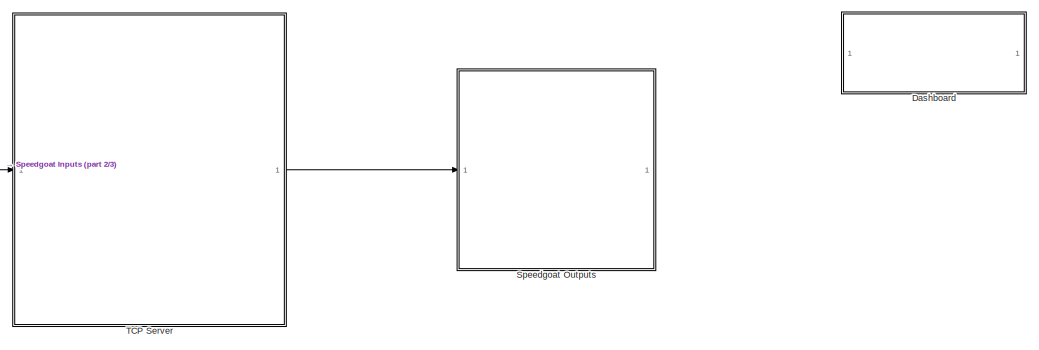
[diagram: root canvas - part 1/3, top right region]
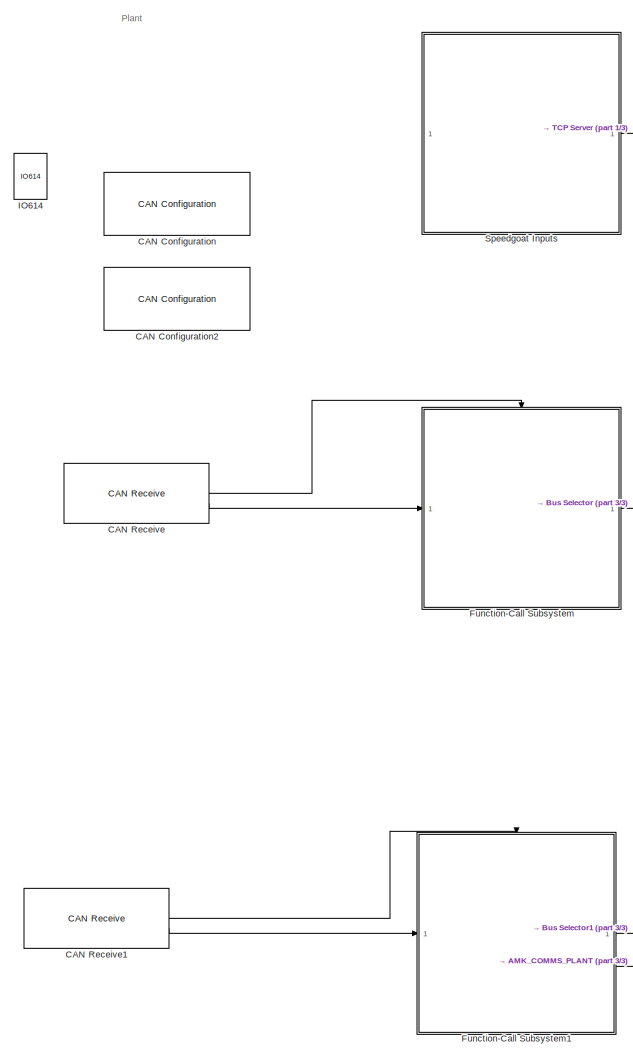
[diagram: root canvas - part 2/3, left side, full height]
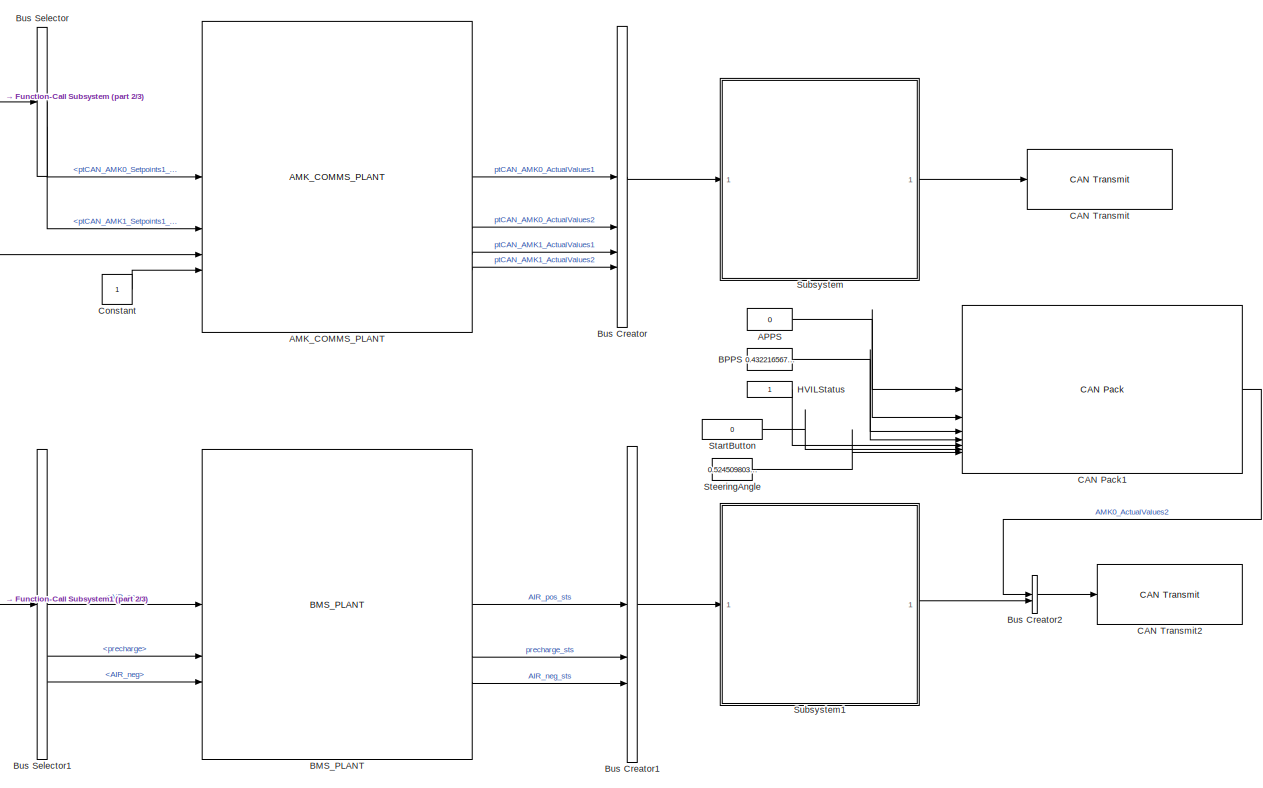
[diagram: root canvas - part 3/3, middle right region]
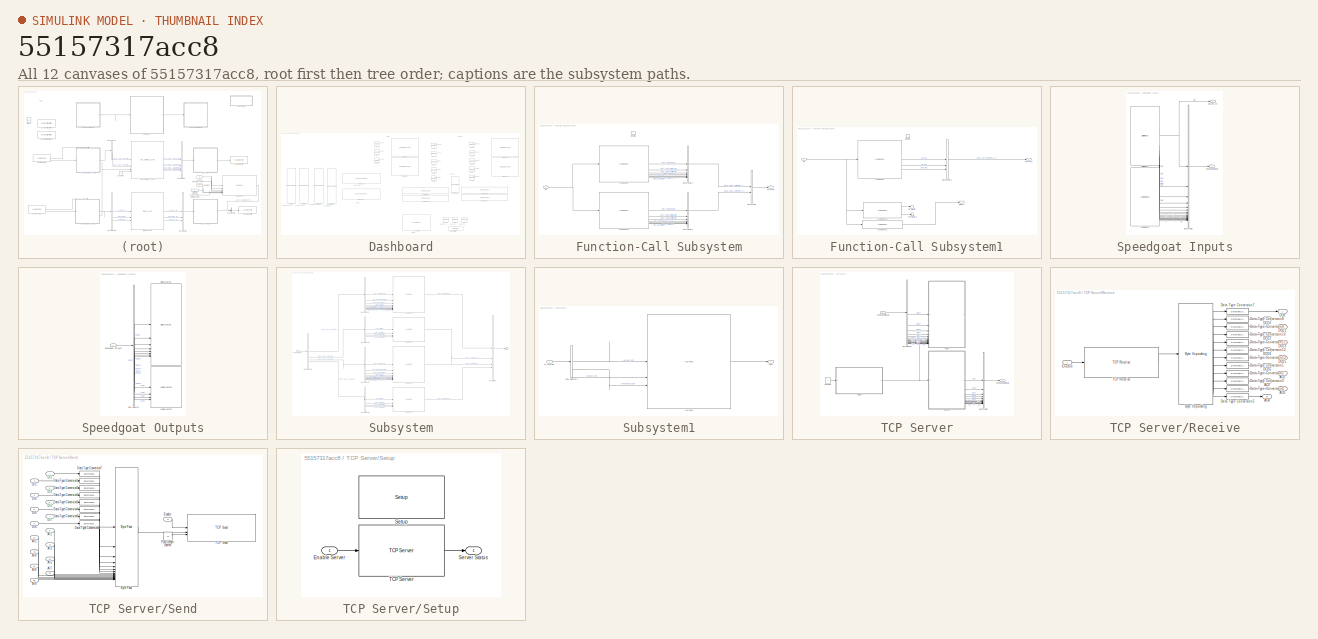
[diagram: thumbnail index - all 12 canvases of the model, root first then tree order]
MODEL slx_55157317acc8
KIND model
CONFIG AbsTol = auto
CONFIG EnableMultiTasking = off
CONFIG FixedStep = 0.001
CONFIG MaxStep = auto
CONFIG MinStep = auto
CONFIG RelTol = 1e-3
CONFIG SampleTimeConstraint = Unconstrained
CONFIG SolverName = FixedStepAuto
CONFIG StartTime = 0.0
CONFIG StopTime = inf
BLOCK [Reference] AMK_COMMS_PLANT  REF=AMK_comms_plant_lib/AMK_COMMS_PLANT
  SourceBlock = AMK_comms_plant_lib/AMK_COMMS_PLANT
  SourceType = SubSystem
BLOCK [Constant] APPS
  Value = 0
BLOCK [Reference] BMS_PLANT  REF=BMS_plant_lib/BMS_PLANT
  SourceBlock = BMS_plant_lib/BMS_PLANT
  SourceType = SubSystem
BLOCK [Constant] BPPS
  Value = 0.4322165677127509
BLOCK [BusCreator] Bus Creator
  DisplayOption = bar
  InheritFromInputs = on
  Inputs = 4
BLOCK [BusCreator] Bus Creator1
  DisplayOption = bar
  InheritFromInputs = on
  Inputs = 3
BLOCK [BusCreator] Bus Creator2
  DisplayOption = bar
  InheritFromInputs = on
  Inputs = 2
BLOCK [BusSelector] Bus Selector
  OutputSignals = ptCAN_AMK0_Setpoints1_Left,ptCAN_AMK1_Setpoints1_Right
BLOCK [BusSelector] Bus Selector1
  OutputSignals = AIR_pos,precharge,AIR_neg
BLOCK [Reference] CAN Configuration  REF=canlib/CAN Configuration
  SourceBlock = canlib/CAN Configuration
  SourceType = CAN Configuration
BLOCK [Reference] CAN Configuration2  REF=canlib/CAN Configuration
  SourceBlock = canlib/CAN Configuration
  SourceType = CAN Configuration
BLOCK [Reference] CAN Pack1  REF=canmsglib/CAN Pack
  LibrarySourceBlock = canlib/CAN Pack
  SourceBlock = canmsglib/CAN Pack
  SourceType = CAN Pack
BLOCK [Reference] CAN Receive  REF=canlib/CAN Receive
  SourceBlock = canlib/CAN Receive
  SourceType = CAN Receive
BLOCK [Reference] CAN Receive1  REF=canlib/CAN Receive
  SourceBlock = canlib/CAN Receive
  SourceType = CAN Receive
BLOCK [Reference] CAN Transmit  REF=canlib/CAN Transmit
  SourceBlock = canlib/CAN Transmit
  SourceType = CAN Transmit
BLOCK [Reference] CAN Transmit2  REF=canlib/CAN Transmit
  SourceBlock = canlib/CAN Transmit
  SourceType = CAN Transmit
BLOCK [Constant] Constant
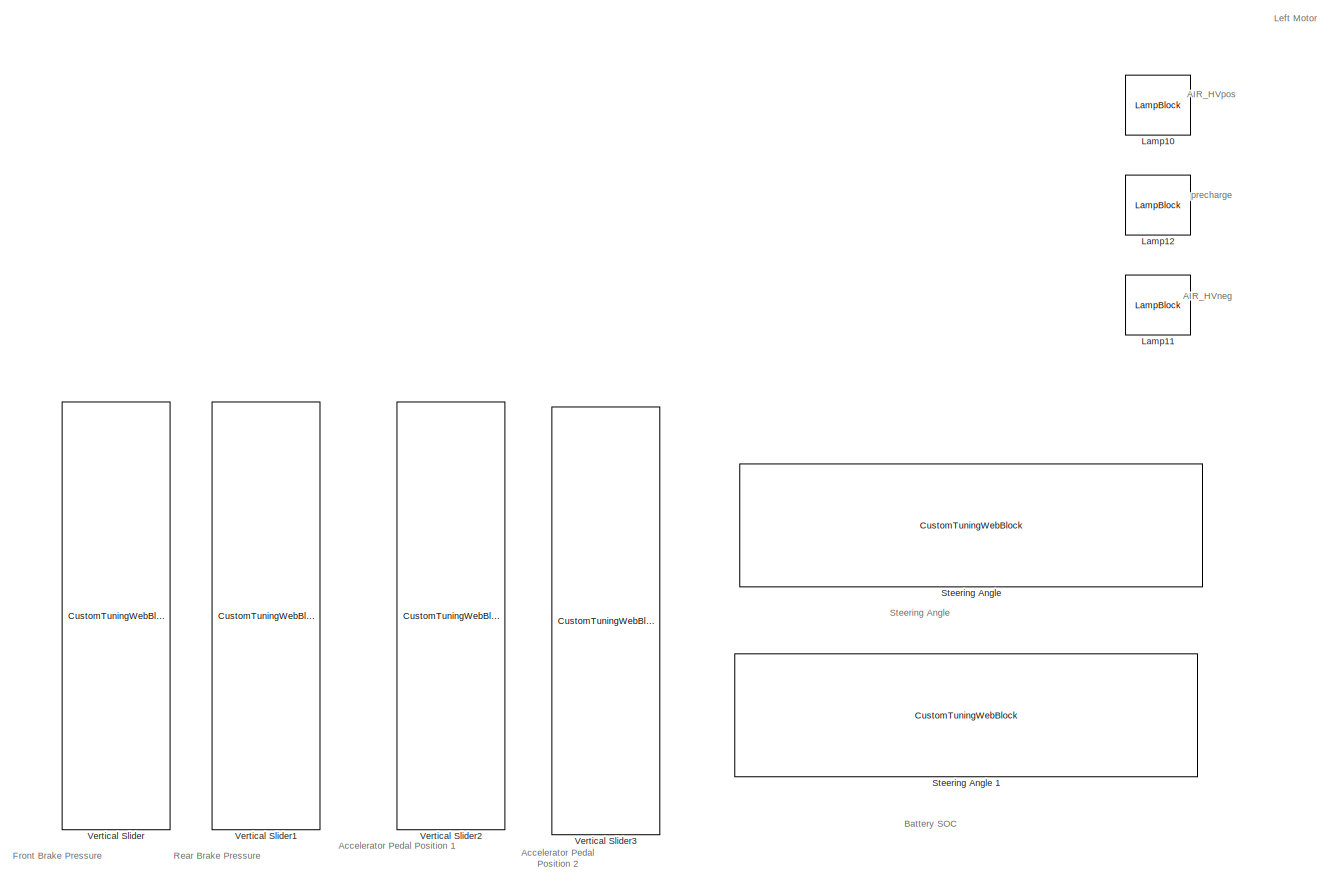
[diagram: Dashboard - part 1/3, middle left region]
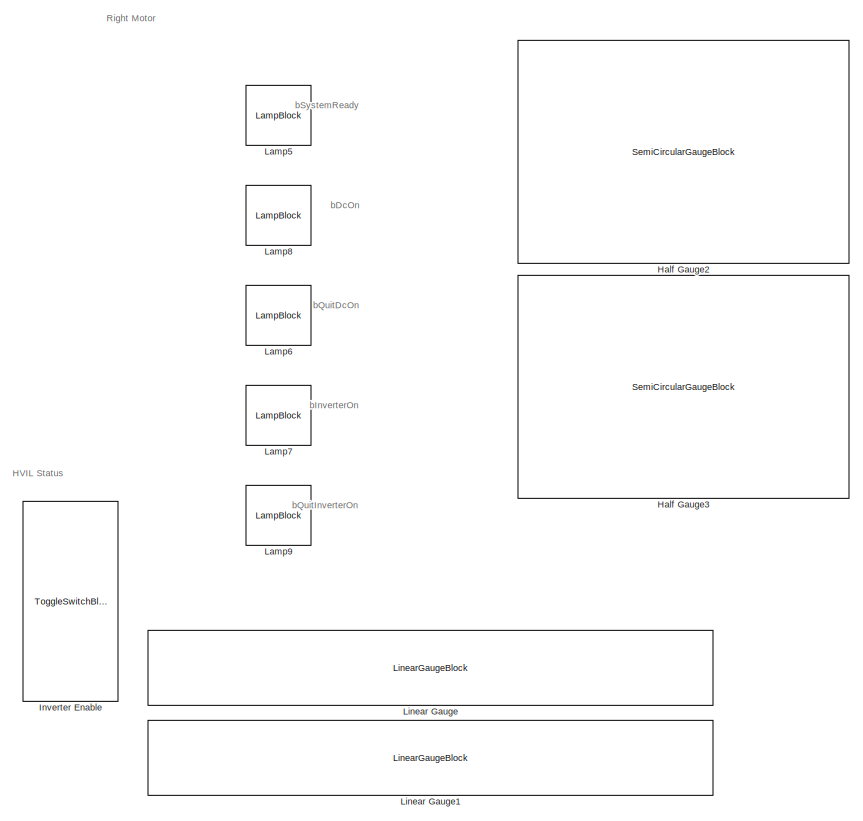
[diagram: Dashboard - part 2/3, middle right region]
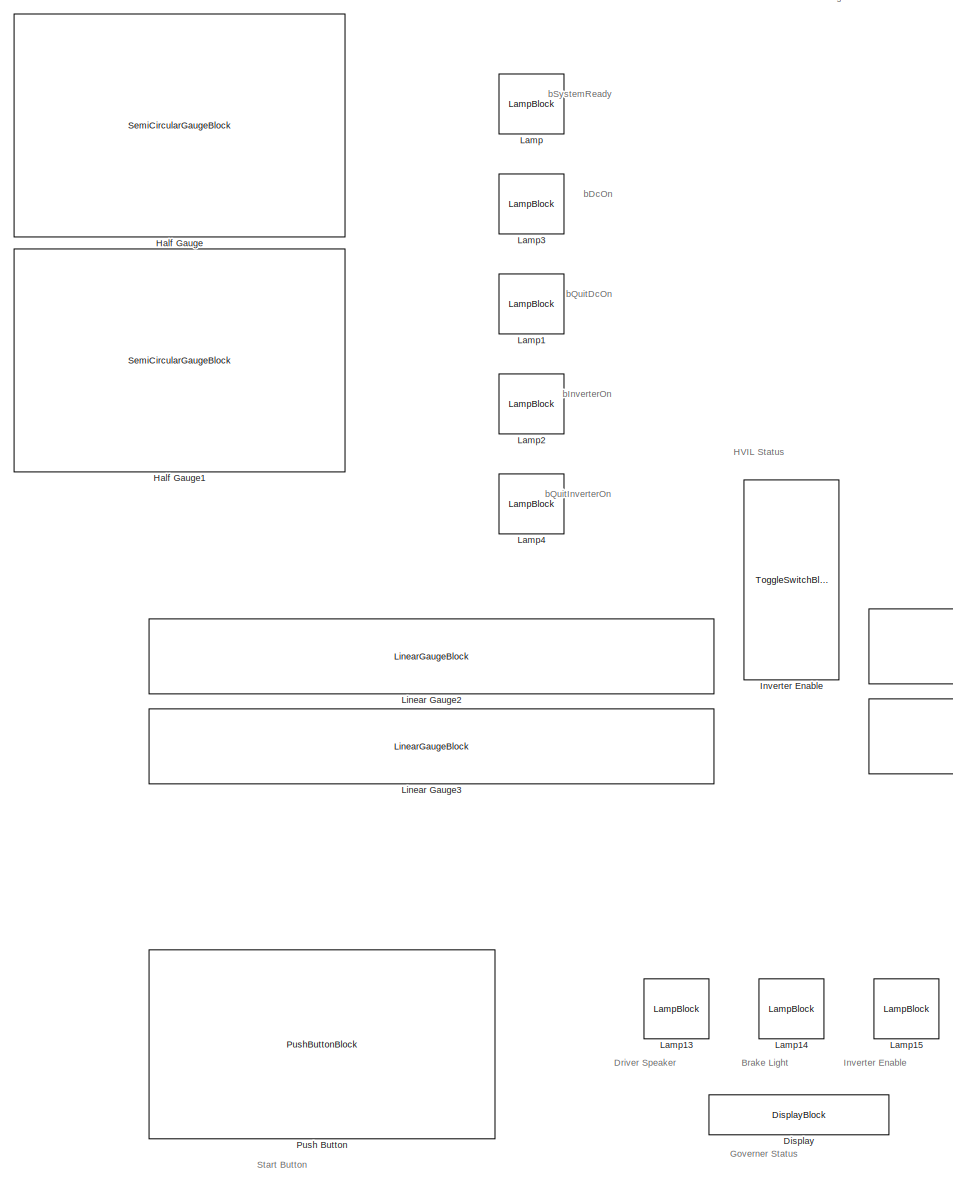
[diagram: Dashboard - part 3/3, center side, full height]
BLOCK [SubSystem] Dashboard
BLOCK [DisplayBlock] Dashboard/Display
  LabelPosition = Hide
  Transparency = 1
BLOCK [SemiCircularGaugeBlock] Dashboard/Half Gauge
  LabelPosition = Bottom
  ScaleMax = 20000
  TickInterval = 2000
BLOCK [SemiCircularGaugeBlock] Dashboard/Half Gauge1
  LabelPosition = Bottom
  ScaleMax = 1000
  TickInterval = 100
BLOCK [SemiCircularGaugeBlock] Dashboard/Half Gauge2
  LabelPosition = Bottom
  ScaleMax = 20000
  TickInterval = 2000
BLOCK [SemiCircularGaugeBlock] Dashboard/Half Gauge3
  LabelPosition = Bottom
  ScaleMax = 1000
  TickInterval = 100
BLOCK [ToggleSwitchBlock] Dashboard/Inverter Enable
  LabelPosition = Bottom
BLOCK [LampBlock] Dashboard/Lamp
  LabelPosition = Hide
BLOCK [LampBlock] Dashboard/Lamp1
  LabelPosition = Hide
BLOCK [LampBlock] Dashboard/Lamp10
  LabelPosition = Hide
BLOCK [LampBlock] Dashboard/Lamp11
  LabelPosition = Hide
BLOCK [LampBlock] Dashboard/Lamp12
  LabelPosition = Hide
BLOCK [LampBlock] Dashboard/Lamp13
  LabelPosition = Hide
BLOCK [LampBlock] Dashboard/Lamp14
  LabelPosition = Hide
BLOCK [LampBlock] Dashboard/Lamp15
  LabelPosition = Hide
BLOCK [LampBlock] Dashboard/Lamp2
  LabelPosition = Hide
BLOCK [LampBlock] Dashboard/Lamp3
  LabelPosition = Hide
BLOCK [LampBlock] Dashboard/Lamp4
  LabelPosition = Hide
BLOCK [LampBlock] Dashboard/Lamp5
  LabelPosition = Hide
BLOCK [LampBlock] Dashboard/Lamp6
  LabelPosition = Hide
BLOCK [LampBlock] Dashboard/Lamp7
  LabelPosition = Hide
BLOCK [LampBlock] Dashboard/Lamp8
  LabelPosition = Hide
BLOCK [LampBlock] Dashboard/Lamp9
  LabelPosition = Hide
BLOCK [LinearGaugeBlock] Dashboard/Linear Gauge
  ScaleMax = 20000
  TickInterval = 2000
BLOCK [LinearGaugeBlock] Dashboard/Linear Gauge1
  ScaleMax = 1000
  TickInterval = 100
BLOCK [LinearGaugeBlock] Dashboard/Linear Gauge2
  ScaleMax = 20000
  TickInterval = 2000
BLOCK [LinearGaugeBlock] Dashboard/Linear Gauge3
  ScaleMax = 1000
  TickInterval = 100
BLOCK [PushButtonBlock] Dashboard/Push Button
  OffValue = 0.000000
BLOCK [CustomTuningWebBlock] Dashboard/Steering Angle 
  Configuration = {"components":[{"name":"LinearScaleComponent","settings":{"bounds":{"max":1,"min":0,"tickInterval":"auto"},"internalTickHeightScaleFactor":0.5,"labelColor":[255,255,200],"labelFont":{"font":"Arial","fontSize":12},"labelOffset":0.05,"labelTransparency":1,"needleImage":{"size":[596,842],"src":"data:image\/svg+xml;base64,PD94bWwgdmVyc2lvbj0iMS4wIiBlbmNvZGluZz0idXRmLTgiPz4NCjwhLS0gR2VuZXJhdG9yOiBBZG9i...<+5488ch>
  LabelPosition = Hide
  ShowInitialText = on
BLOCK [CustomTuningWebBlock] Dashboard/Steering Angle 1
  Configuration = {"components":[{"name":"LinearScaleComponent","settings":{"bounds":{"max":100,"min":0,"tickInterval":"auto"},"internalTickHeightScaleFactor":0.5,"labelColor":[255,255,200],"labelFont":{"font":"Arial","fontSize":12},"labelOffset":0.05,"labelTransparency":1,"needleImage":{"size":[596,842],"src":"data:image\/svg+xml;base64,PD94bWwgdmVyc2lvbj0iMS4wIiBlbmNvZGluZz0idXRmLTgiPz4NCjwhLS0gR2VuZXJhdG9yOiBBZG...<+5490ch>
  LabelPosition = Hide
  ShowInitialText = on
BLOCK [CustomTuningWebBlock] Dashboard/Vertical Slider
  Configuration = {"components":[{"name":"LinearScaleComponent","settings":{"bounds":{"max":1,"min":0,"tickInterval":"auto"},"internalTickHeightScaleFactor":0.5,"labelColor":[255,255,200],"labelFont":{"font":"Arial","fontSize":12},"labelOffset":0.05,"labelTransparency":1,"needleImage":{"size":[596,842],"src":"data:image\/svg+xml;base64,PD94bWwgdmVyc2lvbj0iMS4wIiBlbmNvZGluZz0idXRmLTgiPz4NCjwhLS0gR2VuZXJhdG9yOiBBZG9i...<+5490ch>  <repeated x4 — deduplicated; at blocks: Vertical Slider, Vertical Slider1, Vertical Slider2, Vertical Slider3>
  LabelPosition = Hide
  ShowInitialText = on
BLOCK [CustomTuningWebBlock] Dashboard/Vertical Slider1
  LabelPosition = Hide
  ShowInitialText = on
BLOCK [CustomTuningWebBlock] Dashboard/Vertical Slider2
  LabelPosition = Hide
  ShowInitialText = on
BLOCK [CustomTuningWebBlock] Dashboard/Vertical Slider3
  LabelPosition = Hide
  ShowInitialText = on
BLOCK [SubSystem] Function-Call Subsystem
  TreatAsAtomicUnit = on
BLOCK [BusCreator] Function-Call Subsystem/Bus Creator
  DisplayOption = bar
  InheritFromInputs = on
  Inputs = 2
BLOCK [BusCreator] Function-Call Subsystem/Bus Creator1
  DisplayOption = bar
  InheritFromInputs = on
  Inputs = 7
BLOCK [BusCreator] Function-Call Subsystem/Bus Creator2
  DisplayOption = bar
  InheritFromInputs = on
  Inputs = 7
BLOCK [Reference] Function-Call Subsystem/CAN Unpack  REF=canmsglib/CAN Unpack
  LibrarySourceBlock = canlib/CAN Unpack
  SourceBlock = canmsglib/CAN Unpack
  SourceType = CAN Unpack
BLOCK [Reference] Function-Call Subsystem/CAN Unpack1  REF=canmsglib/CAN Unpack
  LibrarySourceBlock = canlib/CAN Unpack
  SourceBlock = canmsglib/CAN Unpack
  SourceType = CAN Unpack
BLOCK [Inport] Function-Call Subsystem/In1
BLOCK [TriggerPort] Function-Call Subsystem/function
  StatesWhenEnabling = held
  TriggerType = function-call
  VariantControl = (inherit)
BLOCK [Outport] Function-Call Subsystem/pt_CAN_IN
BLOCK [SubSystem] Function-Call Subsystem1
  TreatAsAtomicUnit = on
BLOCK [BusCreator] Function-Call Subsystem1/Bus Creator1
  DisplayOption = bar
  InheritFromInputs = on
  Inputs = 3
BLOCK [Reference] Function-Call Subsystem1/CAN Unpack  REF=canmsglib/CAN Unpack
  LibrarySourceBlock = canlib/CAN Unpack
  SourceBlock = canmsglib/CAN Unpack
  SourceType = CAN Unpack
BLOCK [Reference] Function-Call Subsystem1/CAN Unpack1  REF=canmsglib/CAN Unpack
  LibrarySourceBlock = canlib/CAN Unpack
  SourceBlock = canmsglib/CAN Unpack
  SourceType = CAN Unpack
BLOCK [Reference] Function-Call Subsystem1/CAN Unpack2  REF=canmsglib/CAN Unpack
  LibrarySourceBlock = canlib/CAN Unpack
  SourceBlock = canmsglib/CAN Unpack
  SourceType = CAN Unpack
BLOCK [Inport] Function-Call Subsystem1/In1
BLOCK [Outport] Function-Call Subsystem1/Outport
  Port = 2
BLOCK [Terminator] Function-Call Subsystem1/Terminator
BLOCK [Terminator] Function-Call Subsystem1/Terminator1
BLOCK [TriggerPort] Function-Call Subsystem1/function
  StatesWhenEnabling = held
  TriggerType = function-call
  VariantControl = (inherit)
BLOCK [Outport] Function-Call Subsystem1/pt_CAN_IN
BLOCK [Constant] HVILStatus
BLOCK [Reference] IO614  REF=speedgoatlib_CAN/IO614
  SourceBlock = speedgoatlib_CAN/IO614
  SourceProductName = Simulink Real-Time: Speedgoat I/O Blockset
BLOCK [SubSystem] Speedgoat Inputs
  Commented = on
BLOCK [Reference] Speedgoat Inputs/Analog input   REF=speedgoatlib_IO191/Analog input 
  SourceBlock = speedgoatlib_IO191/Analog input
  SourceProductName = Simulink Real-Time: Speedgoat I/O Blockset
  SourceType = ad_IO191
BLOCK [BusCreator] Speedgoat Inputs/Bus Creator
  DisplayOption = bar
  InheritFromInputs = on
  Inputs = 16
BLOCK [Reference] Speedgoat Inputs/Digital input   REF=speedgoatlib_IO191/Digital input 
  SourceBlock = speedgoatlib_IO191/Digital input
  SourceProductName = Simulink Real-Time: Speedgoat I/O Blockset
  SourceType = di_IO191
BLOCK [Outport] Speedgoat Inputs/Speedgoat Inputs
BLOCK [Outport] Speedgoat Inputs/inverter_en
  Port = 2
BLOCK [SubSystem] Speedgoat Outputs
  Commented = on
BLOCK [Reference] Speedgoat Outputs/Analog output   REF=speedgoatlib_IO191/Analog output 
  SourceBlock = speedgoatlib_IO191/Analog output
  SourceProductName = Simulink Real-Time: Speedgoat I/O Blockset
  SourceType = da_IO191
BLOCK [BusSelector] Speedgoat Outputs/Bus Selector
  OutputSignals = DO9,DO10,DO11,DO12,DO13,DO14,DO15,DO16,AO1,AO2,AO3,AO4
BLOCK [Reference] Speedgoat Outputs/Digital output   REF=speedgoatlib_IO191/Digital output 
  SourceBlock = speedgoatlib_IO191/Digital output
  SourceProductName = Simulink Real-Time: Speedgoat I/O Blockset
  SourceType = do_IO191
BLOCK [Inport] Speedgoat Outputs/Speedgoat Outputs
BLOCK [Constant] StartButton
  Value = 0
BLOCK [Constant] SteeringAngle
  Value = 0.5245098039215687
  VectorParams1D = off
BLOCK [SubSystem] Subsystem
BLOCK [BusCreator] Subsystem/Bus Creator
  DisplayOption = bar
  InheritFromInputs = on
  Inputs = 4
BLOCK [BusSelector] Subsystem/Bus Selector
  OutputSignals = AMK_ActualVelocity,AMK_MagnetizingCurrent,AMK_TorqueCurrent_L,AMK_bDcOn,AMK_bDerating,AMK_bError,AMK_bInverterOn,AMK_bQuitDcOn,AMK_bQuitInverterOn,AMK_bSystemReady,AMK_bWarn
BLOCK [BusSelector] Subsystem/Bus Selector1
  OutputSignals = AMK_ErrorInfo,AMK_TempIGBT,AMK_TempInverter,AMK_TempMotor
BLOCK [BusSelector] Subsystem/Bus Selector2
  OutputSignals = AMK_ActualVelocity,AMK_MagnetizingCurrent,AMK_TorqueCurrent,AMK_bDcOn,AMK_bDerating,AMK_bError,AMK_bInverterOn,AMK_bQuitDcOn,AMK_bQuitInverterOn,AMK_bSystemReady,AMK_bWarn
BLOCK [BusSelector] Subsystem/Bus Selector3
  OutputSignals = AMK_ErrorInfo,AMK_TempIGBT,AMK_TempInverter,AMK_TempMotor
BLOCK [BusSelector] Subsystem/Bus Selector4
  OutputSignals = ptCAN_AMK0_ActualValues1,ptCAN_AMK0_ActualValues2,ptCAN_AMK1_ActualValues1,ptCAN_AMK1_ActualValues2
BLOCK [Reference] Subsystem/CAN Pack  REF=canmsglib/CAN Pack
  LibrarySourceBlock = canlib/CAN Pack
  SourceBlock = canmsglib/CAN Pack
  SourceType = CAN Pack
BLOCK [Reference] Subsystem/CAN Pack1  REF=canmsglib/CAN Pack
  LibrarySourceBlock = canlib/CAN Pack
  SourceBlock = canmsglib/CAN Pack
  SourceType = CAN Pack
BLOCK [Reference] Subsystem/CAN Pack2  REF=canmsglib/CAN Pack
  LibrarySourceBlock = canlib/CAN Pack
  SourceBlock = canmsglib/CAN Pack
  SourceType = CAN Pack
BLOCK [Reference] Subsystem/CAN Pack3  REF=canmsglib/CAN Pack
  LibrarySourceBlock = canlib/CAN Pack
  SourceBlock = canmsglib/CAN Pack
  SourceType = CAN Pack
BLOCK [Outport] Subsystem/Out1
BLOCK [Inport] Subsystem/pt_CAN_OUT
BLOCK [SubSystem] Subsystem1
BLOCK [BusSelector] Subsystem1/Bus Selector4
  OutputSignals = AIR_neg_sts,AIR_pos_sts,precharge_sts
BLOCK [Reference] Subsystem1/CAN Pack  REF=canmsglib/CAN Pack
  LibrarySourceBlock = canlib/CAN Pack
  SourceBlock = canmsglib/CAN Pack
  SourceType = CAN Pack
BLOCK [Outport] Subsystem1/Out1
BLOCK [Inport] Subsystem1/pt_CAN_OUT
BLOCK [SubSystem] TCP Server
  Commented = on
BLOCK [BusCreator] TCP Server/Bus Creator
  DisplayOption = bar
  InheritFromInputs = on
  Inputs = 12
BLOCK [BusSelector] TCP Server/Bus Selector
  OutputSignals = DIO1,DIO2,DIO3,DIO4,DIO5,DIO6,DIO7,DIO8,AI1,AI2,AI3,AI4,AI5,AI6,AI7,AI8
BLOCK [Constant] TCP Server/Constant
BLOCK [SubSystem] TCP Server/Receive
BLOCK [Outport] TCP Server/Receive/AO1
  Port = 9
BLOCK [Outport] TCP Server/Receive/AO2
  Port = 10
BLOCK [Outport] TCP Server/Receive/AO3
  Port = 11
BLOCK [Outport] TCP Server/Receive/AO4
  Port = 12
BLOCK [Reference] TCP Server/Receive/Byte Unpacking  REF=slrealtimeutilitieslib/Byte Unpacking
  SourceBlock = slrealtimeutilitieslib/Byte Unpacking
  SourceType = slreraltimebytepacking
BLOCK [Outport] TCP Server/Receive/DO10
  Port = 2
BLOCK [Outport] TCP Server/Receive/DO11
  Port = 3
BLOCK [Outport] TCP Server/Receive/DO12
  Port = 4
BLOCK [Outport] TCP Server/Receive/DO13
  Port = 5
BLOCK [Outport] TCP Server/Receive/DO14
  Port = 6
BLOCK [Outport] TCP Server/Receive/DO15
  Port = 7
BLOCK [Outport] TCP Server/Receive/DO16
  Port = 8
BLOCK [Outport] TCP Server/Receive/DO9
BLOCK [DataTypeConversion] TCP Server/Receive/Data Type Conversion1
  OutDataTypeStr = double
  RndMeth = Floor
  SaturateOnIntegerOverflow = off
BLOCK [DataTypeConversion] TCP Server/Receive/Data Type Conversion10
  OutDataTypeStr = double
  RndMeth = Floor
  SaturateOnIntegerOverflow = off
BLOCK [DataTypeConversion] TCP Server/Receive/Data Type Conversion11
  OutDataTypeStr = double
  RndMeth = Floor
  SaturateOnIntegerOverflow = off
BLOCK [DataTypeConversion] TCP Server/Receive/Data Type Conversion12
  OutDataTypeStr = double
  RndMeth = Floor
  SaturateOnIntegerOverflow = off
BLOCK [DataTypeConversion] TCP Server/Receive/Data Type Conversion13
  OutDataTypeStr = double
  RndMeth = Floor
  SaturateOnIntegerOverflow = off
BLOCK [DataTypeConversion] TCP Server/Receive/Data Type Conversion2
  OutDataTypeStr = double
  RndMeth = Floor
  SaturateOnIntegerOverflow = off
BLOCK [DataTypeConversion] TCP Server/Receive/Data Type Conversion3
  OutDataTypeStr = double
  RndMeth = Floor
  SaturateOnIntegerOverflow = off
BLOCK [DataTypeConversion] TCP Server/Receive/Data Type Conversion4
  OutDataTypeStr = double
  RndMeth = Floor
  SaturateOnIntegerOverflow = off
BLOCK [DataTypeConversion] TCP Server/Receive/Data Type Conversion5
  OutDataTypeStr = double
  RndMeth = Floor
  SaturateOnIntegerOverflow = off
BLOCK [DataTypeConversion] TCP Server/Receive/Data Type Conversion7
  OutDataTypeStr = double
  RndMeth = Floor
  SaturateOnIntegerOverflow = off
BLOCK [DataTypeConversion] TCP Server/Receive/Data Type Conversion8
  OutDataTypeStr = double
  RndMeth = Floor
  SaturateOnIntegerOverflow = off
BLOCK [DataTypeConversion] TCP Server/Receive/Data Type Conversion9
  OutDataTypeStr = double
  RndMeth = Floor
  SaturateOnIntegerOverflow = off
BLOCK [Inport] TCP Server/Receive/Enable
BLOCK [Reference] TCP Server/Receive/TCP Receive  REF=slrealtimeiplib/TCP Receive
  SourceBlock = slrealtimeiplib/TCP Receive
  SourceType = slrealtimetcpreceive
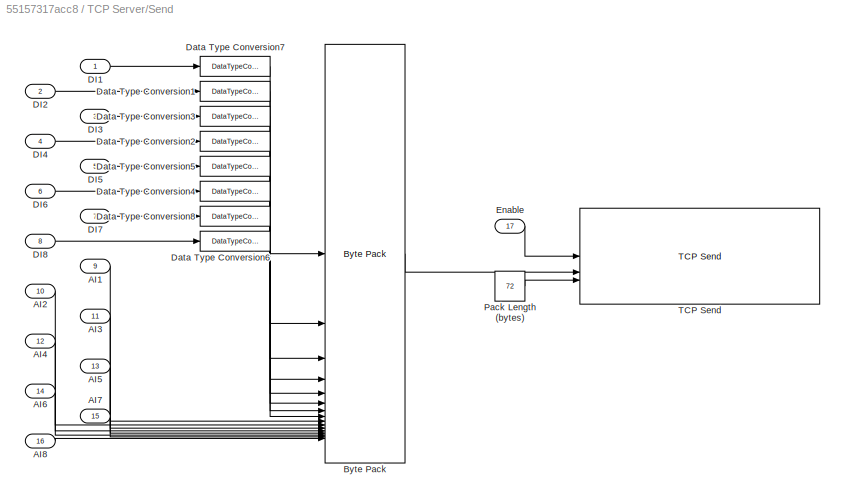
BLOCK [SubSystem] TCP Server/Send
BLOCK [Inport] TCP Server/Send/AI1
  Port = 9
BLOCK [Inport] TCP Server/Send/AI2
  Port = 10
BLOCK [Inport] TCP Server/Send/AI3
  Port = 11
BLOCK [Inport] TCP Server/Send/AI4
  Port = 12
BLOCK [Inport] TCP Server/Send/AI5
  Port = 13
BLOCK [Inport] TCP Server/Send/AI6
  Port = 14
BLOCK [Inport] TCP Server/Send/AI7
  Port = 15
BLOCK [Inport] TCP Server/Send/AI8
  Port = 16
BLOCK [Reference] TCP Server/Send/Byte Pack  REF=etargetslib/Byte Pack
  LibrarySourceBlock = embeddedtargetslib/Host Communication/Byte Pack
  SourceBlock = etargetslib/Byte Pack
  SourceType = Byte pack
BLOCK [Inport] TCP Server/Send/DI1
BLOCK [Inport] TCP Server/Send/DI2
  Port = 2
BLOCK [Inport] TCP Server/Send/DI3
  Port = 3
BLOCK [Inport] TCP Server/Send/DI4
  Port = 4
BLOCK [Inport] TCP Server/Send/DI5
  Port = 5
BLOCK [Inport] TCP Server/Send/DI6
  Port = 6
BLOCK [Inport] TCP Server/Send/DI7
  Port = 7
BLOCK [Inport] TCP Server/Send/DI8
  Port = 8
BLOCK [DataTypeConversion] TCP Server/Send/Data Type Conversion1
  OutDataTypeStr = uint8
  RndMeth = Floor
  SaturateOnIntegerOverflow = off
BLOCK [DataTypeConversion] TCP Server/Send/Data Type Conversion2
  OutDataTypeStr = uint8
  RndMeth = Floor
  SaturateOnIntegerOverflow = off
BLOCK [DataTypeConversion] TCP Server/Send/Data Type Conversion3
  OutDataTypeStr = uint8
  RndMeth = Floor
  SaturateOnIntegerOverflow = off
BLOCK [DataTypeConversion] TCP Server/Send/Data Type Conversion4
  OutDataTypeStr = uint8
  RndMeth = Floor
  SaturateOnIntegerOverflow = off
BLOCK [DataTypeConversion] TCP Server/Send/Data Type Conversion5
  OutDataTypeStr = uint8
  RndMeth = Floor
  SaturateOnIntegerOverflow = off
BLOCK [DataTypeConversion] TCP Server/Send/Data Type Conversion6
  OutDataTypeStr = uint8
  RndMeth = Floor
  SaturateOnIntegerOverflow = off
BLOCK [DataTypeConversion] TCP Server/Send/Data Type Conversion7
  OutDataTypeStr = uint8
  RndMeth = Floor
  SaturateOnIntegerOverflow = off
BLOCK [DataTypeConversion] TCP Server/Send/Data Type Conversion8
  OutDataTypeStr = uint8
  RndMeth = Floor
  SaturateOnIntegerOverflow = off
BLOCK [Inport] TCP Server/Send/Enable
  Port = 17
BLOCK [Constant] TCP Server/Send/Pack Length (bytes)
  Value = 72
BLOCK [Reference] TCP Server/Send/TCP Send  REF=slrealtimeiplib/TCP Send
  SourceBlock = slrealtimeiplib/TCP Send
  SourceType = slrealtimetcpsend
BLOCK [SubSystem] TCP Server/Setup
BLOCK [Inport] TCP Server/Setup/Enable Server
BLOCK [Outport] TCP Server/Setup/Server Status
BLOCK [Reference] TCP Server/Setup/Setup   REF=speedgoatlib_IO191/Setup 
  SourceBlock = speedgoatlib_IO191/Setup
  SourceProductName = Simulink Real-Time: Speedgoat I/O Blockset
  SourceType = setup_IO191
BLOCK [Reference] TCP Server/Setup/TCP Server  REF=slrealtimeiplib/TCP Server
  Priority = -1
  SourceBlock = slrealtimeiplib/TCP Server
  SourceType = slrealtimetcpserver
BLOCK [Inport] TCP Server/Speedgoat Inputs
BLOCK [Outport] TCP Server/Speedgoat Outputs
ANNOTATION (root): Plant
ANNOTATION Dashboard: Accelerator Pedal Position 1
ANNOTATION Dashboard: Accelerator Pedal Position 2
ANNOTATION Dashboard: Battery SOC
ANNOTATION Dashboard: Front Brake Pressure
ANNOTATION Dashboard: HVIL Status
ANNOTATION Dashboard: Rear Brake Pressure
ANNOTATION Dashboard: Start Button
ANNOTATION Dashboard: Steering Angle
ANNOTATION Dashboard: AIR_HVneg
ANNOTATION Dashboard: AIR_HVpos
ANNOTATION Dashboard: Brake Light
ANNOTATION Dashboard: Driver Speaker
ANNOTATION Dashboard: Governer Status
ANNOTATION Dashboard: Inverter Enable
ANNOTATION Dashboard: Left Motor
ANNOTATION Dashboard: Right Motor
ANNOTATION Dashboard: bDcOn
ANNOTATION Dashboard: bInverterOn
ANNOTATION Dashboard: bQuitDcOn
ANNOTATION Dashboard: bQuitInverterOn
ANNOTATION Dashboard: bSystemReady
ANNOTATION Dashboard: precharge
LINE AMK_COMMS_PLANT:1 -> Bus Creator:1
LINE AMK_COMMS_PLANT:2 -> Bus Creator:2
LINE AMK_COMMS_PLANT:3 -> Bus Creator:3
LINE AMK_COMMS_PLANT:4 -> Bus Creator:4
NET APPS:1 -> CAN Pack1:1, CAN Pack1:2
LINE BMS_PLANT:1 -> Bus Creator1:1
LINE BMS_PLANT:2 -> Bus Creator1:2
LINE BMS_PLANT:3 -> Bus Creator1:3
NET BPPS:1 -> CAN Pack1:3, CAN Pack1:4
LINE Bus Creator1:1 -> Subsystem1:1
LINE Bus Creator2:1 -> CAN Transmit2:1
LINE Bus Creator:1 -> Subsystem:1
LINE Bus Selector1:1 -> BMS_PLANT:1
LINE Bus Selector1:2 -> BMS_PLANT:2
LINE Bus Selector1:3 -> BMS_PLANT:3
LINE Bus Selector:1 -> AMK_COMMS_PLANT:1
LINE Bus Selector:2 -> AMK_COMMS_PLANT:2
LINE CAN Pack1:1 -> Bus Creator2:1
LINE CAN Receive1:1 -> Function-Call Subsystem1:trigger
LINE CAN Receive1:2 -> Function-Call Subsystem1:1
LINE CAN Receive:1 -> Function-Call Subsystem:trigger
LINE CAN Receive:2 -> Function-Call Subsystem:1
LINE Constant:1 -> AMK_COMMS_PLANT:4
LINE Function-Call Subsystem/Bus Creator1:1 -> Function-Call Subsystem/Bus Creator:1
LINE Function-Call Subsystem/Bus Creator2:1 -> Function-Call Subsystem/Bus Creator:2
LINE Function-Call Subsystem/Bus Creator:1 -> Function-Call Subsystem/pt_CAN_IN:1
LINE Function-Call Subsystem/CAN Unpack1:1 -> Function-Call Subsystem/Bus Creator2:1
LINE Function-Call Subsystem/CAN Unpack1:2 -> Function-Call Subsystem/Bus Creator2:2
LINE Function-Call Subsystem/CAN Unpack1:3 -> Function-Call Subsystem/Bus Creator2:3
LINE Function-Call Subsystem/CAN Unpack1:4 -> Function-Call Subsystem/Bus Creator2:4
LINE Function-Call Subsystem/CAN Unpack1:5 -> Function-Call Subsystem/Bus Creator2:5
LINE Function-Call Subsystem/CAN Unpack1:6 -> Function-Call Subsystem/Bus Creator2:6
LINE Function-Call Subsystem/CAN Unpack1:7 -> Function-Call Subsystem/Bus Creator2:7
LINE Function-Call Subsystem/CAN Unpack:1 -> Function-Call Subsystem/Bus Creator1:1
LINE Function-Call Subsystem/CAN Unpack:2 -> Function-Call Subsystem/Bus Creator1:2
LINE Function-Call Subsystem/CAN Unpack:3 -> Function-Call Subsystem/Bus Creator1:3
LINE Function-Call Subsystem/CAN Unpack:4 -> Function-Call Subsystem/Bus Creator1:4
LINE Function-Call Subsystem/CAN Unpack:5 -> Function-Call Subsystem/Bus Creator1:5
LINE Function-Call Subsystem/CAN Unpack:6 -> Function-Call Subsystem/Bus Creator1:6
LINE Function-Call Subsystem/CAN Unpack:7 -> Function-Call Subsystem/Bus Creator1:7
NET Function-Call Subsystem/In1:1 -> Function-Call Subsystem/CAN Unpack1:1, Function-Call Subsystem/CAN Unpack:1
LINE Function-Call Subsystem1/Bus Creator1:1 -> Function-Call Subsystem1/pt_CAN_IN:1
LINE Function-Call Subsystem1/CAN Unpack1:1 -> Function-Call Subsystem1/Outport:1
LINE Function-Call Subsystem1/CAN Unpack2:1 -> Function-Call Subsystem1/Terminator:1
LINE Function-Call Subsystem1/CAN Unpack2:2 -> Function-Call Subsystem1/Terminator1:1
LINE Function-Call Subsystem1/CAN Unpack:1 -> Function-Call Subsystem1/Bus Creator1:1
LINE Function-Call Subsystem1/CAN Unpack:2 -> Function-Call Subsystem1/Bus Creator1:2
LINE Function-Call Subsystem1/CAN Unpack:3 -> Function-Call Subsystem1/Bus Creator1:3
NET Function-Call Subsystem1/In1:1 -> Function-Call Subsystem1/CAN Unpack1:1, Function-Call Subsystem1/CAN Unpack2:1, Function-Call Subsystem1/CAN Unpack:1
LINE Function-Call Subsystem1:1 -> Bus Selector1:1
LINE Function-Call Subsystem1:2 -> AMK_COMMS_PLANT:3
LINE Function-Call Subsystem:1 -> Bus Selector:1
LINE HVILStatus:1 -> CAN Pack1:5
LINE Speedgoat Inputs/Analog input :1 -> Speedgoat Inputs/Bus Creator:9
LINE Speedgoat Inputs/Analog input :2 -> Speedgoat Inputs/Bus Creator:10
LINE Speedgoat Inputs/Analog input :3 -> Speedgoat Inputs/Bus Creator:11
LINE Speedgoat Inputs/Analog input :4 -> Speedgoat Inputs/Bus Creator:12
LINE Speedgoat Inputs/Analog input :5 -> Speedgoat Inputs/Bus Creator:13
LINE Speedgoat Inputs/Analog input :6 -> Speedgoat Inputs/Bus Creator:14
LINE Speedgoat Inputs/Analog input :7 -> Speedgoat Inputs/Bus Creator:15
LINE Speedgoat Inputs/Analog input :8 -> Speedgoat Inputs/Bus Creator:16
LINE Speedgoat Inputs/Bus Creator:1 -> Speedgoat Inputs/Speedgoat Inputs:1
NET Speedgoat Inputs/Digital input :1 -> Speedgoat Inputs/Bus Creator:1, Speedgoat Inputs/inverter_en:1
LINE Speedgoat Inputs/Digital input :2 -> Speedgoat Inputs/Bus Creator:2
LINE Speedgoat Inputs/Digital input :3 -> Speedgoat Inputs/Bus Creator:3
LINE Speedgoat Inputs/Digital input :4 -> Speedgoat Inputs/Bus Creator:4
LINE Speedgoat Inputs/Digital input :5 -> Speedgoat Inputs/Bus Creator:5
LINE Speedgoat Inputs/Digital input :6 -> Speedgoat Inputs/Bus Creator:6
LINE Speedgoat Inputs/Digital input :7 -> Speedgoat Inputs/Bus Creator:7
LINE Speedgoat Inputs/Digital input :8 -> Speedgoat Inputs/Bus Creator:8
LINE Speedgoat Inputs:1 -> TCP Server:1
LINE Speedgoat Outputs/Bus Selector:1 -> Speedgoat Outputs/Digital output :1
LINE Speedgoat Outputs/Bus Selector:10 -> Speedgoat Outputs/Analog output :2
LINE Speedgoat Outputs/Bus Selector:11 -> Speedgoat Outputs/Analog output :3
LINE Speedgoat Outputs/Bus Selector:12 -> Speedgoat Outputs/Analog output :4
LINE Speedgoat Outputs/Bus Selector:2 -> Speedgoat Outputs/Digital output :2
LINE Speedgoat Outputs/Bus Selector:3 -> Speedgoat Outputs/Digital output :3
LINE Speedgoat Outputs/Bus Selector:4 -> Speedgoat Outputs/Digital output :4
LINE Speedgoat Outputs/Bus Selector:5 -> Speedgoat Outputs/Digital output :5
LINE Speedgoat Outputs/Bus Selector:6 -> Speedgoat Outputs/Digital output :6
LINE Speedgoat Outputs/Bus Selector:7 -> Speedgoat Outputs/Digital output :7
LINE Speedgoat Outputs/Bus Selector:8 -> Speedgoat Outputs/Digital output :8
LINE Speedgoat Outputs/Bus Selector:9 -> Speedgoat Outputs/Analog output :1
LINE Speedgoat Outputs/Speedgoat Outputs:1 -> Speedgoat Outputs/Bus Selector:1
LINE StartButton:1 -> CAN Pack1:6
LINE SteeringAngle:1 -> CAN Pack1:7
LINE Subsystem/Bus Creator:1 -> Subsystem/Out1:1
LINE Subsystem/Bus Selector1:1 -> Subsystem/CAN Pack1:1
LINE Subsystem/Bus Selector1:2 -> Subsystem/CAN Pack1:2
LINE Subsystem/Bus Selector1:3 -> Subsystem/CAN Pack1:3
LINE Subsystem/Bus Selector1:4 -> Subsystem/CAN Pack1:4
LINE Subsystem/Bus Selector2:1 -> Subsystem/CAN Pack2:1
LINE Subsystem/Bus Selector2:10 -> Subsystem/CAN Pack2:10
LINE Subsystem/Bus Selector2:11 -> Subsystem/CAN Pack2:11
LINE Subsystem/Bus Selector2:2 -> Subsystem/CAN Pack2:2
LINE Subsystem/Bus Selector2:3 -> Subsystem/CAN Pack2:3
LINE Subsystem/Bus Selector2:4 -> Subsystem/CAN Pack2:4
LINE Subsystem/Bus Selector2:5 -> Subsystem/CAN Pack2:5
LINE Subsystem/Bus Selector2:6 -> Subsystem/CAN Pack2:6
LINE Subsystem/Bus Selector2:7 -> Subsystem/CAN Pack2:7
LINE Subsystem/Bus Selector2:8 -> Subsystem/CAN Pack2:8
LINE Subsystem/Bus Selector2:9 -> Subsystem/CAN Pack2:9
LINE Subsystem/Bus Selector3:1 -> Subsystem/CAN Pack3:1
LINE Subsystem/Bus Selector3:2 -> Subsystem/CAN Pack3:2
LINE Subsystem/Bus Selector3:3 -> Subsystem/CAN Pack3:3
LINE Subsystem/Bus Selector3:4 -> Subsystem/CAN Pack3:4
LINE Subsystem/Bus Selector4:1 -> Subsystem/Bus Selector:1
LINE Subsystem/Bus Selector4:2 -> Subsystem/Bus Selector1:1
LINE Subsystem/Bus Selector4:3 -> Subsystem/Bus Selector2:1
LINE Subsystem/Bus Selector4:4 -> Subsystem/Bus Selector3:1
LINE Subsystem/Bus Selector:1 -> Subsystem/CAN Pack:1
LINE Subsystem/Bus Selector:10 -> Subsystem/CAN Pack:10
LINE Subsystem/Bus Selector:11 -> Subsystem/CAN Pack:11
LINE Subsystem/Bus Selector:2 -> Subsystem/CAN Pack:2
LINE Subsystem/Bus Selector:3 -> Subsystem/CAN Pack:3
LINE Subsystem/Bus Selector:4 -> Subsystem/CAN Pack:4
LINE Subsystem/Bus Selector:5 -> Subsystem/CAN Pack:5
LINE Subsystem/Bus Selector:6 -> Subsystem/CAN Pack:6
LINE Subsystem/Bus Selector:7 -> Subsystem/CAN Pack:7
LINE Subsystem/Bus Selector:8 -> Subsystem/CAN Pack:8
LINE Subsystem/Bus Selector:9 -> Subsystem/CAN Pack:9
LINE Subsystem/CAN Pack1:1 -> Subsystem/Bus Creator:2
LINE Subsystem/CAN Pack2:1 -> Subsystem/Bus Creator:3
LINE Subsystem/CAN Pack3:1 -> Subsystem/Bus Creator:4
LINE Subsystem/CAN Pack:1 -> Subsystem/Bus Creator:1
LINE Subsystem/pt_CAN_OUT:1 -> Subsystem/Bus Selector4:1
LINE Subsystem1/Bus Selector4:1 -> Subsystem1/CAN Pack:1
LINE Subsystem1/Bus Selector4:2 -> Subsystem1/CAN Pack:2
LINE Subsystem1/Bus Selector4:3 -> Subsystem1/CAN Pack:3
LINE Subsystem1/CAN Pack:1 -> Subsystem1/Out1:1
LINE Subsystem1/pt_CAN_OUT:1 -> Subsystem1/Bus Selector4:1
LINE Subsystem1:1 -> Bus Creator2:2
LINE Subsystem:1 -> CAN Transmit:1
LINE TCP Server/Bus Creator:1 -> TCP Server/Speedgoat Outputs:1
LINE TCP Server/Bus Selector:1 -> TCP Server/Send:1
LINE TCP Server/Bus Selector:10 -> TCP Server/Send:10
LINE TCP Server/Bus Selector:11 -> TCP Server/Send:11
LINE TCP Server/Bus Selector:12 -> TCP Server/Send:12
LINE TCP Server/Bus Selector:13 -> TCP Server/Send:13
LINE TCP Server/Bus Selector:14 -> TCP Server/Send:14
LINE TCP Server/Bus Selector:15 -> TCP Server/Send:15
LINE TCP Server/Bus Selector:16 -> TCP Server/Send:16
LINE TCP Server/Bus Selector:2 -> TCP Server/Send:2
LINE TCP Server/Bus Selector:3 -> TCP Server/Send:3
LINE TCP Server/Bus Selector:4 -> TCP Server/Send:4
LINE TCP Server/Bus Selector:5 -> TCP Server/Send:5
LINE TCP Server/Bus Selector:6 -> TCP Server/Send:6
LINE TCP Server/Bus Selector:7 -> TCP Server/Send:7
LINE TCP Server/Bus Selector:8 -> TCP Server/Send:8
LINE TCP Server/Bus Selector:9 -> TCP Server/Send:9
LINE TCP Server/Constant:1 -> TCP Server/Setup:1
LINE TCP Server/Receive/Byte Unpacking:1 -> TCP Server/Receive/Data Type Conversion7:1
LINE TCP Server/Receive/Byte Unpacking:10 -> TCP Server/Receive/Data Type Conversion3:1
LINE TCP Server/Receive/Byte Unpacking:11 -> TCP Server/Receive/Data Type Conversion4:1
LINE TCP Server/Receive/Byte Unpacking:12 -> TCP Server/Receive/Data Type Conversion5:1
LINE TCP Server/Receive/Byte Unpacking:2 -> TCP Server/Receive/Data Type Conversion8:1
LINE TCP Server/Receive/Byte Unpacking:3 -> TCP Server/Receive/Data Type Conversion9:1
LINE TCP Server/Receive/Byte Unpacking:4 -> TCP Server/Receive/Data Type Conversion10:1
LINE TCP Server/Receive/Byte Unpacking:5 -> TCP Server/Receive/Data Type Conversion11:1
LINE TCP Server/Receive/Byte Unpacking:6 -> TCP Server/Receive/Data Type Conversion12:1
LINE TCP Server/Receive/Byte Unpacking:7 -> TCP Server/Receive/Data Type Conversion13:1
LINE TCP Server/Receive/Byte Unpacking:8 -> TCP Server/Receive/Data Type Conversion1:1
LINE TCP Server/Receive/Byte Unpacking:9 -> TCP Server/Receive/Data Type Conversion2:1
LINE TCP Server/Receive/Data Type Conversion10:1 -> TCP Server/Receive/DO12:1
LINE TCP Server/Receive/Data Type Conversion11:1 -> TCP Server/Receive/DO13:1
LINE TCP Server/Receive/Data Type Conversion12:1 -> TCP Server/Receive/DO14:1
LINE TCP Server/Receive/Data Type Conversion13:1 -> TCP Server/Receive/DO15:1
LINE TCP Server/Receive/Data Type Conversion1:1 -> TCP Server/Receive/DO16:1
LINE TCP Server/Receive/Data Type Conversion2:1 -> TCP Server/Receive/AO1:1
LINE TCP Server/Receive/Data Type Conversion3:1 -> TCP Server/Receive/AO2:1
LINE TCP Server/Receive/Data Type Conversion4:1 -> TCP Server/Receive/AO3:1
LINE TCP Server/Receive/Data Type Conversion5:1 -> TCP Server/Receive/AO4:1
LINE TCP Server/Receive/Data Type Conversion7:1 -> TCP Server/Receive/DO9:1
LINE TCP Server/Receive/Data Type Conversion8:1 -> TCP Server/Receive/DO10:1
LINE TCP Server/Receive/Data Type Conversion9:1 -> TCP Server/Receive/DO11:1
LINE TCP Server/Receive/Enable:1 -> TCP Server/Receive/TCP Receive:1
LINE TCP Server/Receive/TCP Receive:1 -> TCP Server/Receive/Byte Unpacking:1
LINE TCP Server/Receive:1 -> TCP Server/Bus Creator:1
LINE TCP Server/Receive:10 -> TCP Server/Bus Creator:10
LINE TCP Server/Receive:11 -> TCP Server/Bus Creator:11
LINE TCP Server/Receive:12 -> TCP Server/Bus Creator:12
LINE TCP Server/Receive:2 -> TCP Server/Bus Creator:2
LINE TCP Server/Receive:3 -> TCP Server/Bus Creator:3
LINE TCP Server/Receive:4 -> TCP Server/Bus Creator:4
LINE TCP Server/Receive:5 -> TCP Server/Bus Creator:5
LINE TCP Server/Receive:6 -> TCP Server/Bus Creator:6
LINE TCP Server/Receive:7 -> TCP Server/Bus Creator:7
LINE TCP Server/Receive:8 -> TCP Server/Bus Creator:8
LINE TCP Server/Receive:9 -> TCP Server/Bus Creator:9
LINE TCP Server/Send/AI1:1 -> TCP Server/Send/Byte Pack:9
LINE TCP Server/Send/AI2:1 -> TCP Server/Send/Byte Pack:10
LINE TCP Server/Send/AI3:1 -> TCP Server/Send/Byte Pack:11
LINE TCP Server/Send/AI4:1 -> TCP Server/Send/Byte Pack:12
LINE TCP Server/Send/AI5:1 -> TCP Server/Send/Byte Pack:13
LINE TCP Server/Send/AI6:1 -> TCP Server/Send/Byte Pack:14
LINE TCP Server/Send/AI7:1 -> TCP Server/Send/Byte Pack:15
LINE TCP Server/Send/AI8:1 -> TCP Server/Send/Byte Pack:16
LINE TCP Server/Send/Byte Pack:1 -> TCP Server/Send/TCP Send:2
LINE TCP Server/Send/DI1:1 -> TCP Server/Send/Data Type Conversion7:1
LINE TCP Server/Send/DI2:1 -> TCP Server/Send/Data Type Conversion1:1
LINE TCP Server/Send/DI3:1 -> TCP Server/Send/Data Type Conversion3:1
LINE TCP Server/Send/DI4:1 -> TCP Server/Send/Data Type Conversion2:1
LINE TCP Server/Send/DI5:1 -> TCP Server/Send/Data Type Conversion5:1
LINE TCP Server/Send/DI6:1 -> TCP Server/Send/Data Type Conversion4:1
LINE TCP Server/Send/DI7:1 -> TCP Server/Send/Data Type Conversion8:1
LINE TCP Server/Send/DI8:1 -> TCP Server/Send/Data Type Conversion6:1
LINE TCP Server/Send/Data Type Conversion1:1 -> TCP Server/Send/Byte Pack:2
LINE TCP Server/Send/Data Type Conversion2:1 -> TCP Server/Send/Byte Pack:4
LINE TCP Server/Send/Data Type Conversion3:1 -> TCP Server/Send/Byte Pack:3
LINE TCP Server/Send/Data Type Conversion4:1 -> TCP Server/Send/Byte Pack:6
LINE TCP Server/Send/Data Type Conversion5:1 -> TCP Server/Send/Byte Pack:5
LINE TCP Server/Send/Data Type Conversion6:1 -> TCP Server/Send/Byte Pack:8
LINE TCP Server/Send/Data Type Conversion7:1 -> TCP Server/Send/Byte Pack:1
LINE TCP Server/Send/Data Type Conversion8:1 -> TCP Server/Send/Byte Pack:7
LINE TCP Server/Send/Enable:1 -> TCP Server/Send/TCP Send:1
LINE TCP Server/Send/Pack Length (bytes):1 -> TCP Server/Send/TCP Send:3
LINE TCP Server/Setup/Enable Server:1 -> TCP Server/Setup/TCP Server:1
LINE TCP Server/Setup/TCP Server:1 -> TCP Server/Setup/Server Status:1
NET TCP Server/Setup:1 -> TCP Server/Receive:1, TCP Server/Send:17
LINE TCP Server/Speedgoat Inputs:1 -> TCP Server/Bus Selector:1
LINE TCP Server:1 -> Speedgoat Outputs:1
note: NET lines group one-source signal fan-out (src -> all destinations, sorted); 1:1 wires keep LINE
